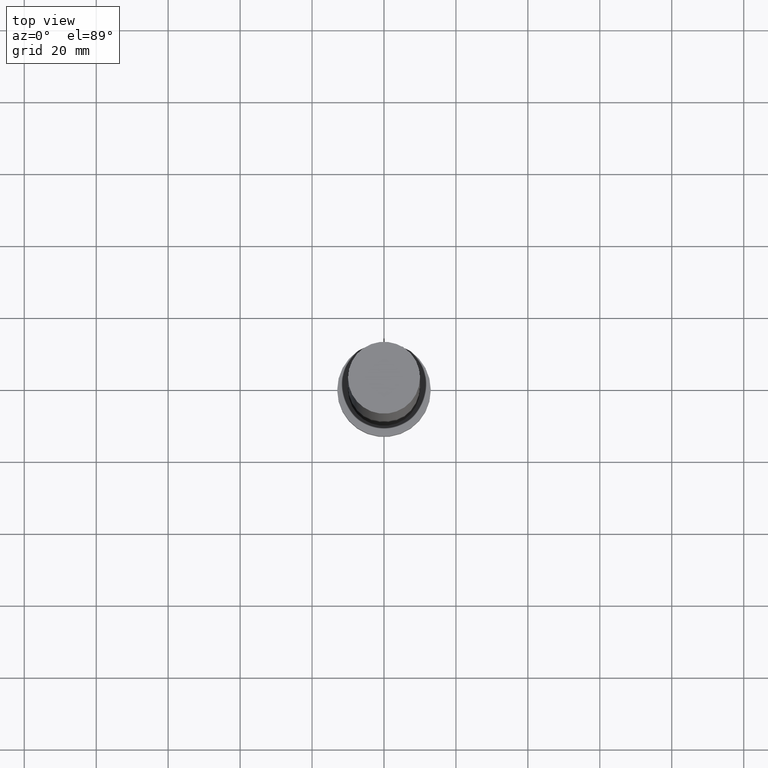
[diagram: clean part render]
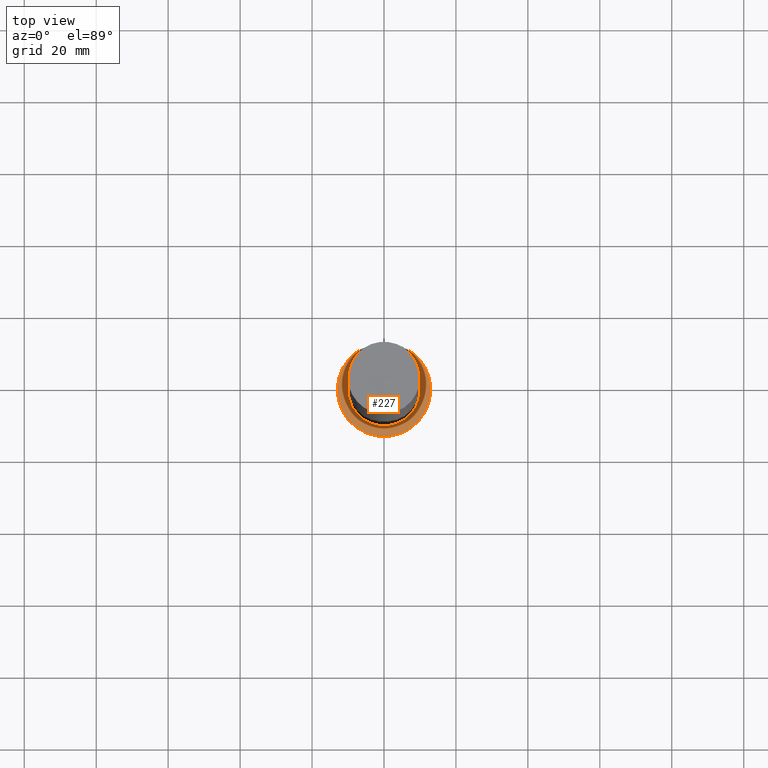
[diagram: same view with one face highlighted and labeled with its STEP entity id]
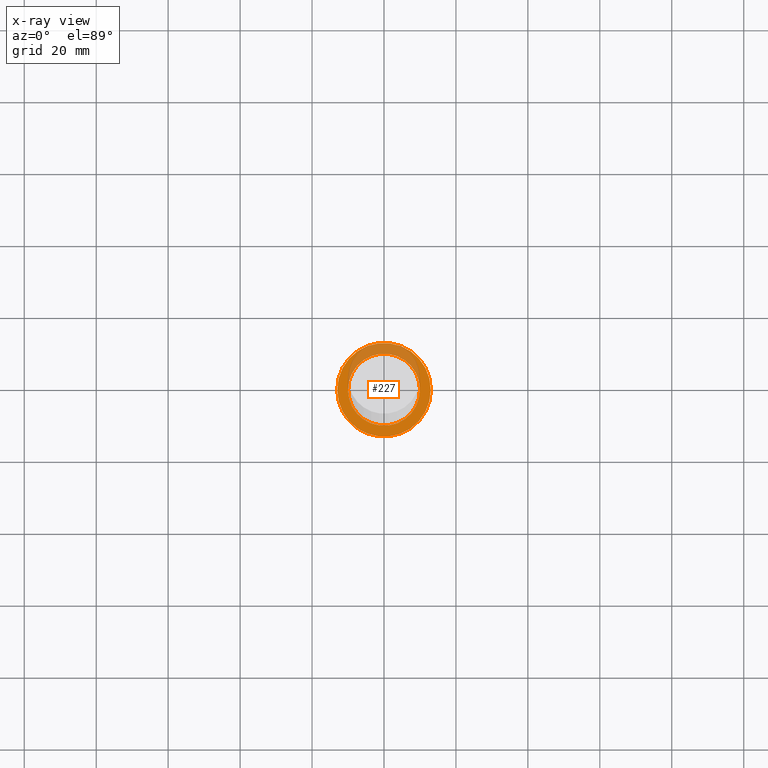
[diagram: x-ray of the same camera — body ghosted, the highlighted face saturated]
A machine part, top view. The second image highlights one B-rep face of the part: STEP entity #227.
The next image is the same camera in x-ray: the body ghosted, the highlighted face saturated — about 30% of this face is hidden behind the body in this view.
In plain terms, the highlighted planar face has unit normal (0, 0, 1).
Its self-contained STEP definition (entity closure, byte-faithful):
#1 = CARTESIAN_POINT ( 'NONE',  ( 10.00000000000000000, 1.224646799147353256E-15, 8.000000000000000000 ) ) ;
#4 = DIRECTION ( 'NONE',  ( 1.000000000000000000, 0.000000000000000000, 0.000000000000000000 ) ) ;
#5 = FACE_OUTER_BOUND ( 'NONE', #71, .T. ) ;
#12 = DIRECTION ( 'NONE',  ( 1.000000000000000000, 0.000000000000000000, 0.000000000000000000 ) ) ;
#19 = DIRECTION ( 'NONE',  ( 1.000000000000000000, 0.000000000000000000, 0.000000000000000000 ) ) ;
#23 = CARTESIAN_POINT ( 'NONE',  ( 0.000000000000000000, 0.000000000000000000, 8.000000000000000000 ) ) ;
#44 = ORIENTED_EDGE ( 'NONE', *, *, #179, .T. ) ;
#46 = AXIS2_PLACEMENT_3D ( 'NONE', #23, #158, #206 ) ;
#47 = ORIENTED_EDGE ( 'NONE', *, *, #203, .F. ) ;
#59 = AXIS2_PLACEMENT_3D ( 'NONE', #75, #151, #19 ) ;
#61 = PLANE ( 'NONE',  #46 ) ;
#63 = EDGE_CURVE ( 'NONE', #164, #86, #242, .T. ) ;
#71 = EDGE_LOOP ( 'NONE', ( #44, #168 ) ) ;
#75 = CARTESIAN_POINT ( 'NONE',  ( 0.000000000000000000, 0.000000000000000000, 8.000000000000000000 ) ) ;
#79 = FACE_BOUND ( 'NONE', #209, .T. ) ;
#80 = AXIS2_PLACEMENT_3D ( 'NONE', #114, #96, #4 ) ;
#86 = VERTEX_POINT ( 'NONE', #1 ) ;
#94 = CARTESIAN_POINT ( 'NONE',  ( -10.00000000000000000, 0.000000000000000000, 8.000000000000000000 ) ) ;
#96 = DIRECTION ( 'NONE',  ( 0.000000000000000000, 0.000000000000000000, 1.000000000000000000 ) ) ;
#101 = DIRECTION ( 'NONE',  ( 0.000000000000000000, 0.000000000000000000, 1.000000000000000000 ) ) ;
#112 = DIRECTION ( 'NONE',  ( 0.000000000000000000, 0.000000000000000000, 1.000000000000000000 ) ) ;
#114 = CARTESIAN_POINT ( 'NONE',  ( 0.000000000000000000, 0.000000000000000000, 8.000000000000000000 ) ) ;
#125 = CARTESIAN_POINT ( 'NONE',  ( 0.000000000000000000, 0.000000000000000000, 8.000000000000000000 ) ) ;
#138 = EDGE_CURVE ( 'NONE', #146, #140, #232, .T. ) ;
#140 = VERTEX_POINT ( 'NONE', #220 ) ;
#146 = VERTEX_POINT ( 'NONE', #252 ) ;
#151 = DIRECTION ( 'NONE',  ( 0.000000000000000000, 0.000000000000000000, 1.000000000000000000 ) ) ;
#158 = DIRECTION ( 'NONE',  ( 0.000000000000000000, 0.000000000000000000, 1.000000000000000000 ) ) ;
#164 = VERTEX_POINT ( 'NONE', #94 ) ;
#168 = ORIENTED_EDGE ( 'NONE', *, *, #138, .T. ) ;
#179 = EDGE_CURVE ( 'NONE', #140, #146, #188, .T. ) ;
#181 = CIRCLE ( 'NONE', #80, 10.00000000000000000 ) ;
#188 = CIRCLE ( 'NONE', #225, 13.00000000000000178 ) ;
#203 = EDGE_CURVE ( 'NONE', #86, #164, #181, .T. ) ;
#206 = DIRECTION ( 'NONE',  ( 1.000000000000000000, 0.000000000000000000, -0.000000000000000000 ) ) ;
#209 = EDGE_LOOP ( 'NONE', ( #215, #47 ) ) ;
#215 = ORIENTED_EDGE ( 'NONE', *, *, #63, .F. ) ;
#219 = CARTESIAN_POINT ( 'NONE',  ( 0.000000000000000000, 0.000000000000000000, 8.000000000000000000 ) ) ;
#220 = CARTESIAN_POINT ( 'NONE',  ( -13.00000000000000178, 0.000000000000000000, 8.000000000000000000 ) ) ;
#225 = AXIS2_PLACEMENT_3D ( 'NONE', #219, #112, #235 ) ;
#227 = ADVANCED_FACE ( 'NONE', ( #79, #5 ), #61, .T. ) ;
#232 = CIRCLE ( 'NONE', #59, 13.00000000000000178 ) ;
#235 = DIRECTION ( 'NONE',  ( 1.000000000000000000, 0.000000000000000000, 0.000000000000000000 ) ) ;
#239 = AXIS2_PLACEMENT_3D ( 'NONE', #125, #101, #12 ) ;
#242 = CIRCLE ( 'NONE', #239, 10.00000000000000000 ) ;
#252 = CARTESIAN_POINT ( 'NONE',  ( 13.00000000000000178, 1.592040838891559293E-15, 8.000000000000000000 ) ) ;